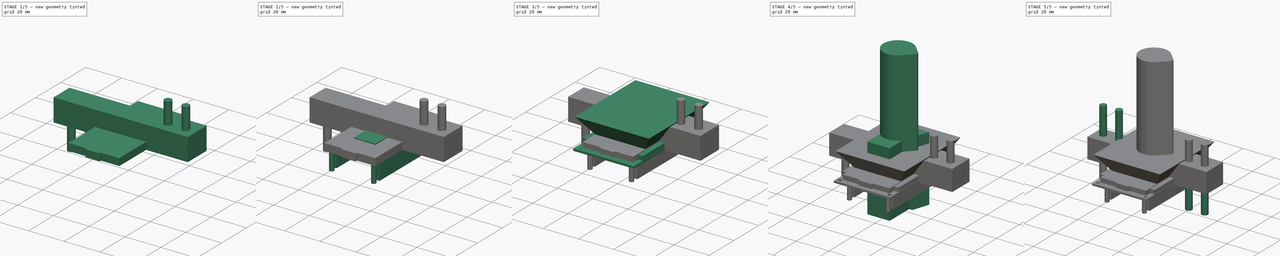
[diagram: build sequence overview — one tinted view per stage of 5, left to right]
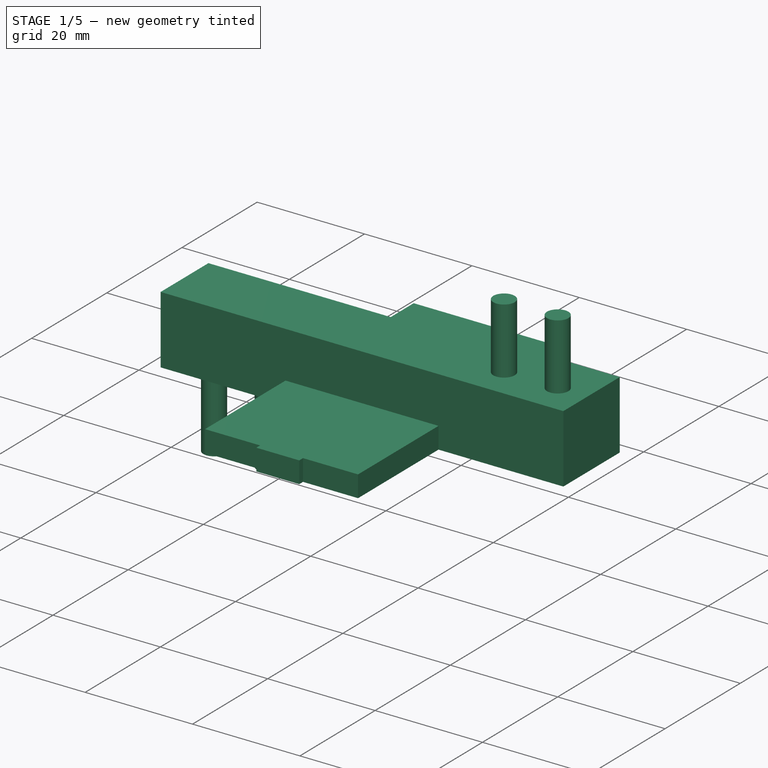
[diagram: stage 1 of 5 — iso view after this stage's code; geometry added in this stage tinted green]
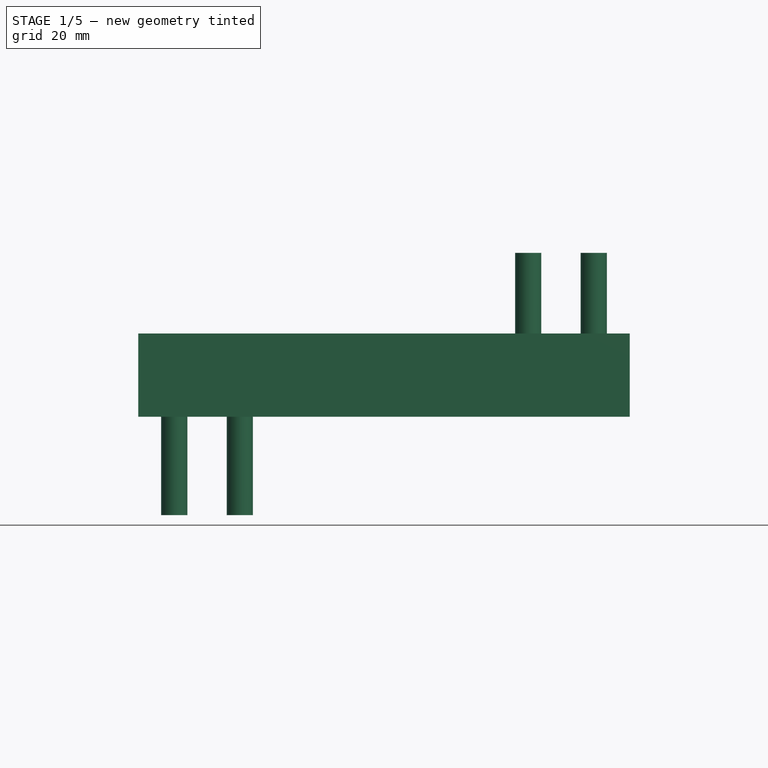
[diagram: stage 1 of 5 — front view after this stage's code; geometry added in this stage tinted green]
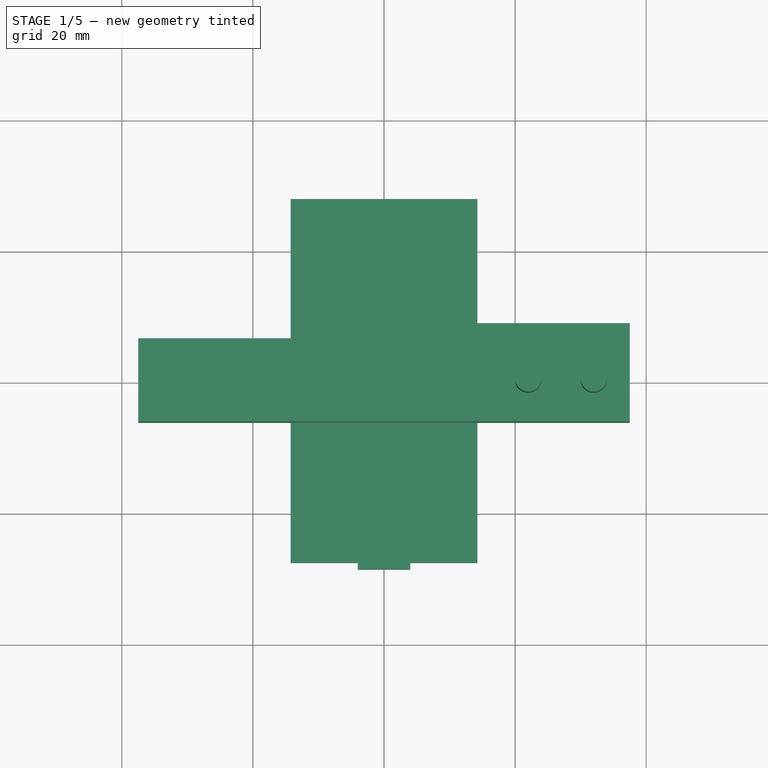
[diagram: stage 1 of 5 — top view after this stage's code; geometry added in this stage tinted green]
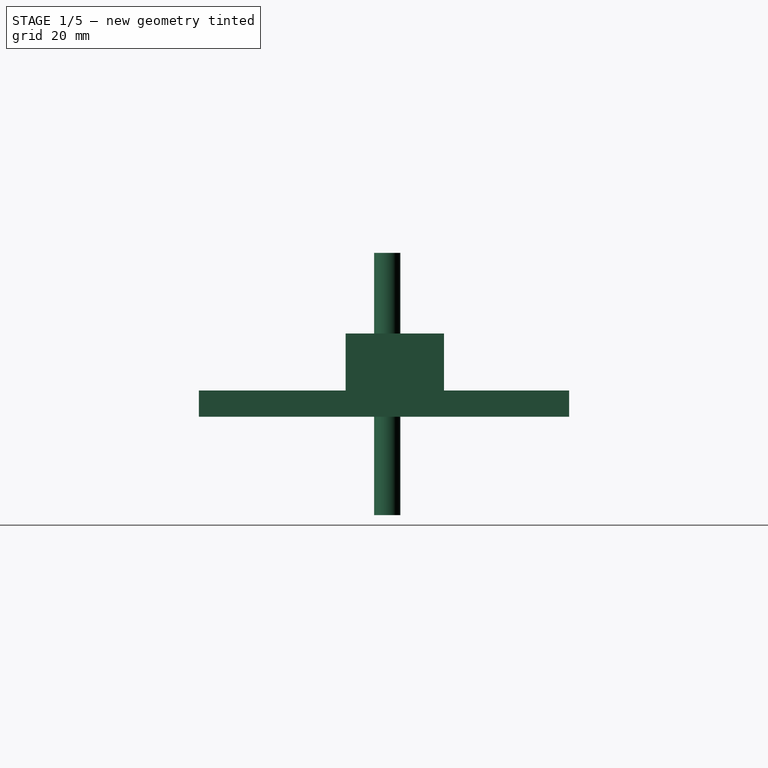
[diagram: stage 1 of 5 — right view after this stage's code; geometry added in this stage tinted green]
FCSTD DOCUMENT  (FreeCAD 0.22R38340 (Git))
Label: parts
License: All rights reserved
LicenseURL: https://en.wikipedia.org/wiki/All_rights_reserved
objects: PartDesign::Pad×20, Sketcher::SketchObject×11, Image::ImagePlane×7, PartDesign::Body×7, PartDesign::SubShapeBinder×2, PartDesign::Pocket×2
note: 97 computed .brp shape members not serialized (recipe doc carries the construction recipe); baked Part::Feature solids carry a one-line shape summary decoded from their .brp

FEATURE [PartDesign::Body] Body001  label="display"
  AllowCompound = false
  Group = -> [Sketch001,Pad003,Pad004,Binder,Pad005,Pad006,Pocket001]
  Origin = -> Origin001
  Tip = -> Pocket001
FEATURE [PartDesign::Pad] Pad019
  Direction = (0,0,1)
  Length = 4
  Length2 = 10
  Profile = -> Sketch004 [Edge7,Edge8,Edge1,Edge2,Edge3,Edge4,Edge5,Edge6]
  ReferenceAxis = -> Sketch004 [N_Axis]
  Refine = true
  Suppressed = false
  Type = 0
FEATURE [PartDesign::Body] Body003  label="esp32"
  AllowCompound = false
  Group = -> [Sketch004,Pad019,Pad020,Sketch009,Pad023]
  Origin = -> Origin003
  Tip = -> Pad023
FEATURE [Sketcher::SketchObject] Sketch010
  ArcFitTolerance = 1e-06
  AttachmentSupport = -> [XY_Plane006]
  FullyConstrained = true
  MakeInternals = false
  MapMode = 5
  sketch-geometry (13):
    g0: Circle CenterX=-32 CenterY=0 CenterZ=0 NormalX=0 NormalY=0 NormalZ=1 AngleXU=0 Radius=2
    g1: Circle CenterX=-22 CenterY=0 CenterZ=0 NormalX=0 NormalY=0 NormalZ=1 AngleXU=0 Radius=2
    g2: Circle CenterX=22 CenterY=0 CenterZ=0 NormalX=0 NormalY=0 NormalZ=1 AngleXU=0 Radius=2
    g3: Circle CenterX=32 CenterY=0 CenterZ=0 NormalX=0 NormalY=0 NormalZ=1 AngleXU=0 Radius=2
    g4: LineSegment StartX=-37.5 StartY=6.35 StartZ=0 EndX=-37.5 EndY=-6.35 EndZ=0
    g5: LineSegment StartX=-37.5 StartY=-6.35 StartZ=0 EndX=37.5 EndY=-6.35 EndZ=0
    g6: LineSegment StartX=37.5 StartY=-6.35 StartZ=0 EndX=37.5 EndY=6.35 EndZ=0
    g7: GeomPoint X=0 Y=0 Z=0
    g8: LineSegment StartX=6.5 StartY=6.35 StartZ=0 EndX=8.8 EndY=8.65 EndZ=0
    g9: LineSegment StartX=8.8 StartY=8.65 StartZ=0 EndX=37.5 EndY=8.65 EndZ=0
    g10: LineSegment StartX=37.5 StartY=8.65 StartZ=0 EndX=37.5 EndY=6.35 EndZ=0
    g11: LineSegment StartX=6.5 StartY=6.35 StartZ=0 EndX=-37.5 EndY=6.35 EndZ=0
    g12: LineSegment StartX=37.5 StartY=8.65 StartZ=0 EndX=37.5 EndY=6.35 EndZ=0
  constraints (35):
    c: PointOnObject(g0,g-1)
    c: PointOnObject(g1,g-1)
    c: PointOnObject(g3,g-1)
    c: Equal(g3,g2)
    c: Equal(g2,g1)
    c: Equal(g1,g0)
    c: Coincident(g4,g5)
    c: Coincident(g5,g6)
    c: Coincident(g11,g4)
    c: Vertical(g4)
    c: Vertical(g6)
    c: Horizontal(g5)
    c: Symmetric(g6,g4,g7)
    c: Coincident(g7,g-1)
    c: DistanceX(g11,g6) = 75
    c: DistanceY(g6,g6) = 12.7
    c: DistanceX(g0,g1) = 10
    c: DistanceX(g2,g3) = 10
    c: Diameter(g1) = 4
    c: DistanceX(g1,g2) = 44
    c: Symmetric(g1,g2,g-2)
    c: PointOnObject(g8,g11)
    c: Coincident(g8,g9)
    c: Horizontal(g9)
    c: Coincident(g10,g6)
    c: Vertical(g10)
    c: PointOnObject(g11,g8)
    c: Coincident(g9,g10)
    c: DistanceY(g5,g8) = 15
    c: Angle(g8,g9) = 2.35619
    c: DistanceX(g8,g6) = 31
    c: Horizontal(g11)
    c: Horizontal(g8,g6)
    c: Coincident(g12,g9)
    c: Coincident(g12,g6)
FEATURE [PartDesign::Pad] Pad024
  Direction = (0,0,1)
  Length = 12.7
  Length2 = 10
  Profile = -> Sketch010 [Edge7,Edge6,Edge5,Edge11,Edge10,Edge9,Edge8]
  ReferenceAxis = -> Sketch010 [N_Axis]
  Refine = true
  Suppressed = false
  Type = 0
FEATURE [PartDesign::Pad] Pad025  label="Pad_LOAD_SCREWS"
  BaseFeature = -> Pad024
  Direction = (0,0,1)
  Length = 15
  Length2 = 10
  Profile = -> Sketch010 [Edge1,Edge2]
  ReferenceAxis = -> Sketch010 [N_Axis]
  Refine = true
  Reversed = true
  Suppressed = false
  Type = 0
FEATURE [PartDesign::Pad] Pad026  label="Pad_FIXED_SCREWS"
  BaseFeature = -> Pad025
  Direction = (0,0,1)
  Length = 25
  Length2 = 10
  Profile = -> Sketch010 [Edge3,Edge4]
  ReferenceAxis = -> Sketch010 [N_Axis]
  Refine = true
  Suppressed = false
  Type = 0
FEATURE [PartDesign::Body] Body006  label="loadcell_mit_silikon"
  AllowCompound = false
  Group = -> [Sketch010,Pad024,Pad025,Pad026]
  Origin = -> Origin006
  Tip = -> Pad026
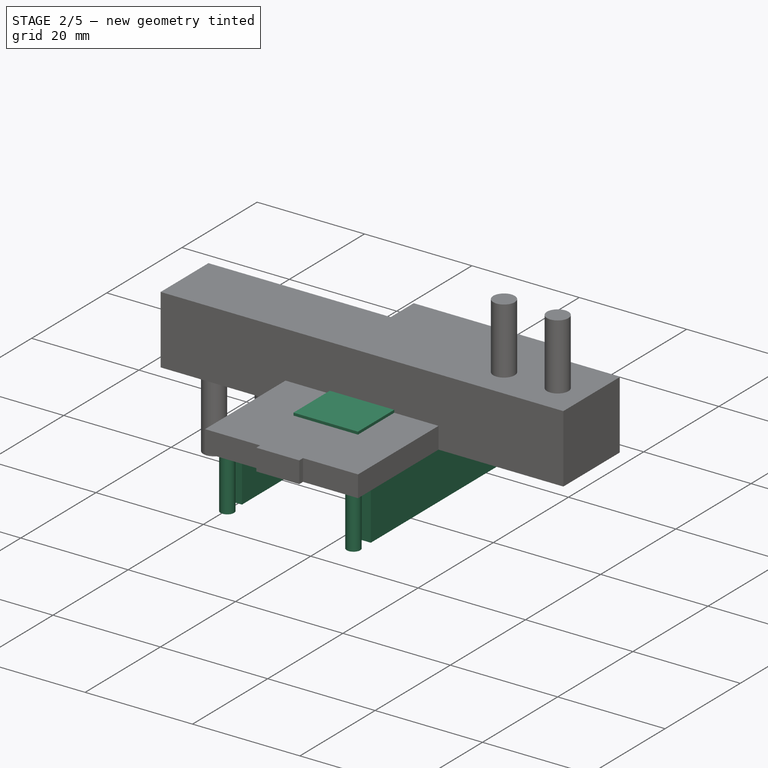
[diagram: stage 2 of 5 — iso view after this stage's code; geometry added in this stage tinted green]
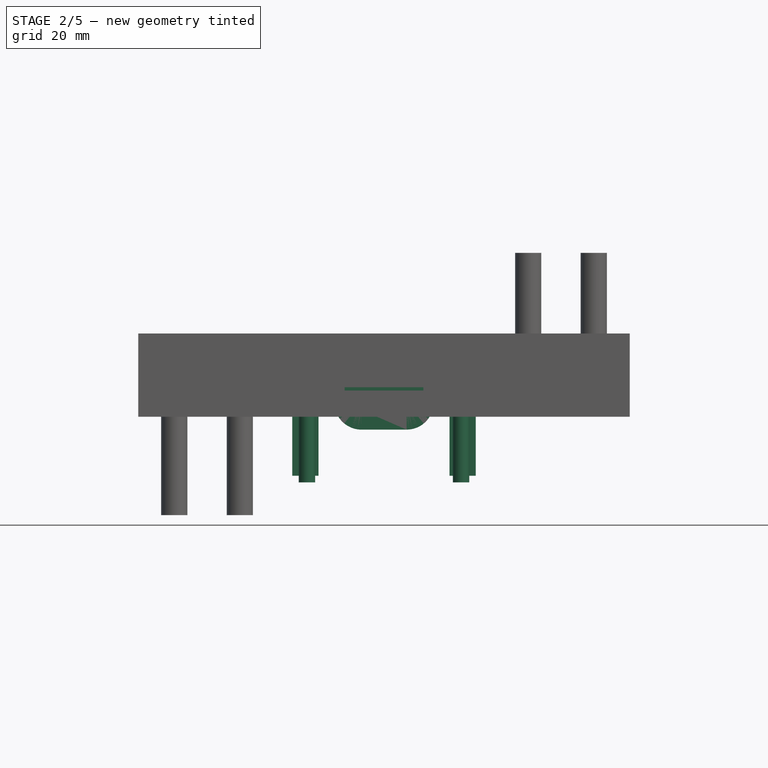
[diagram: stage 2 of 5 — front view after this stage's code; geometry added in this stage tinted green]
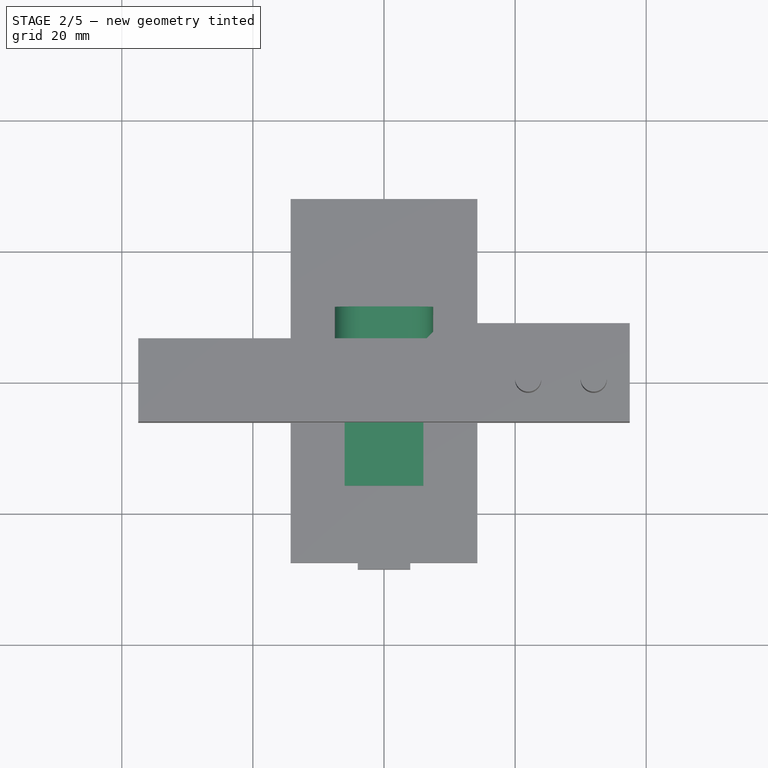
[diagram: stage 2 of 5 — top view after this stage's code; geometry added in this stage tinted green]
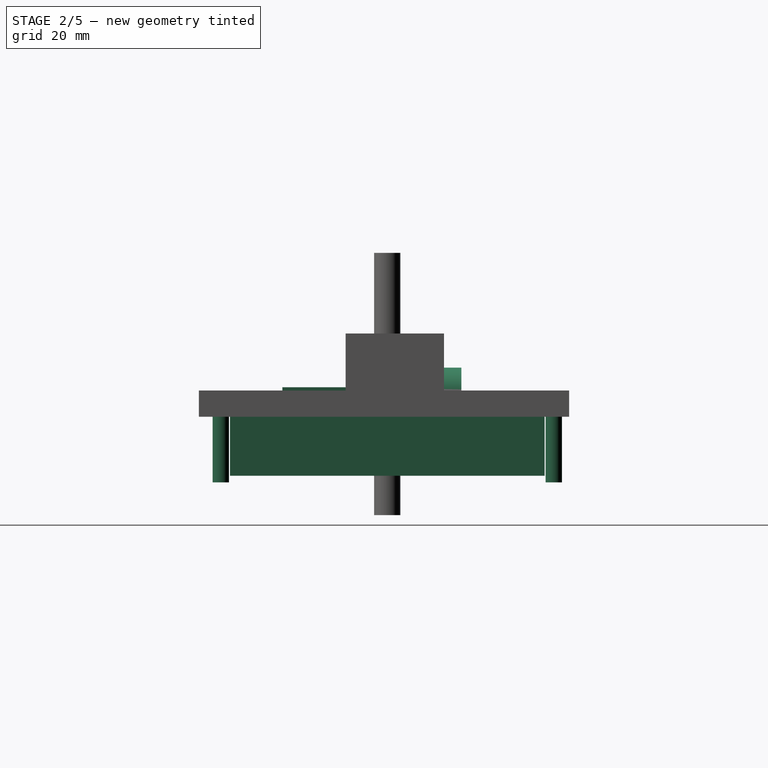
[diagram: stage 2 of 5 — right view after this stage's code; geometry added in this stage tinted green]
FEATURE [Image::ImagePlane] charger  label="charger_img"
  XSize = 201.411
  YSize = 256.437
FEATURE [Sketcher::SketchObject] Sketch002
  ArcFitTolerance = 1e-06
  AttachmentSupport = -> [XY_Plane002]
  FullyConstrained = true
  MakeInternals = false
  MapMode = 5
  sketch-geometry (10):
    g0: LineSegment StartX=-6 StartY=0 StartZ=0 EndX=-6 EndY=-1.6 EndZ=0
    g1: LineSegment StartX=-6 StartY=-16 StartZ=0 EndX=6 EndY=-16 EndZ=0
    g2: LineSegment StartX=6 StartY=-16 StartZ=0 EndX=6 EndY=-3.2 EndZ=0
    g3: LineSegment StartX=6 StartY=0 StartZ=0 EndX=-6 EndY=0 EndZ=0
    g4: GeomPoint X=-6 Y=-2.4 Z=0
    g5: GeomPoint X=6 Y=-2.4 Z=0
    g6: ArcOfCircle CenterX=-6 CenterY=-2.4 CenterZ=0 NormalX=0 NormalY=0 NormalZ=1 AngleXU=0 Radius=0.8 StartAngle=4.71239 EndAngle=7.85398
    g7: ArcOfCircle CenterX=6 CenterY=-2.4 CenterZ=0 NormalX=0 NormalY=0 NormalZ=1 AngleXU=0 Radius=0.8 StartAngle=1.5708 EndAngle=4.71239
    g8: LineSegment StartX=6 StartY=-1.6 StartZ=0 EndX=6 EndY=0 EndZ=0
    g9: LineSegment StartX=-6 StartY=-3.2 StartZ=0 EndX=-6 EndY=-16 EndZ=0
  constraints (29):
    c: Coincident(g9,g1)
    c: Coincident(g1,g2)
    c: Coincident(g8,g3)
    c: Coincident(g3,g0)
    c: Vertical(g0)
    c: Vertical(g2)
    c: Horizontal(g1)
    c: Horizontal(g3)
    c: Distance(g0,g8) = 12
    c: Distance(g1,g3) = 16
    c: Symmetric(g0,g8,g-1)
    c: PointOnObject(g4,g0)
    c: PointOnObject(g5,g2)
    c: Horizontal(g5,g4)
    c: DistanceY(g4,g0) = 2.4
    c: Coincident(g6,g4)
    c: PointOnObject(g6,g9)
    c: Coincident(g7,g5)
    c: PointOnObject(g7,g8)
    c: Equal(g6,g7)
    c: Radius(g6) = 0.8
    c: Coincident(g2,g7)
    c: PointOnObject(g8,g7)
    c: Coincident(g0,g6)
    c: PointOnObject(g9,g6)
    c: Vertical(g0,g6)
    c: Vertical(g7,g2)
    c: Vertical(g9)
    c: Vertical(g8)
FEATURE [Sketcher::SketchObject] Sketch003
  ArcFitTolerance = 1e-06
  AttachmentOffset = pos=(0,0,-1.3) rot=(0,0,1;0rad)
  AttachmentSupport = -> [XZ_Plane002]
  FullyConstrained = true
  MakeInternals = false
  MapMode = 5
  Placement = pos=(0,1.3,-3e-16) rot=(1,0,0;1.5708rad)
  expr: Constraints[22] = 6.69 mm + 0.2 mm
  expr: Constraints[23] = 4.4 mm + 0.1 mm
  expr: Constraints[7] = 8.94 mm + 0.2 mm
  expr: Constraints[8] = 3.26 mm + 0.2 mm
  sketch-geometry (10):
    g0: LineSegment StartX=-3.445 StartY=1.04 StartZ=0 EndX=3.445 EndY=1.04 EndZ=0
    g1: LineSegment StartX=4.57 StartY=2.165 StartZ=0 EndX=4.57 EndY=3.375 EndZ=0
    g2: LineSegment StartX=3.445 StartY=4.5 StartZ=0 EndX=-3.445 EndY=4.5 EndZ=0
    g3: LineSegment StartX=-4.57 StartY=3.375 StartZ=0 EndX=-4.57 EndY=2.165 EndZ=0
    g4: GeomPoint X=4.57 Y=4.5 Z=0
    g5: GeomPoint X=0 Y=2.77 Z=0
    g6: ArcOfCircle CenterX=3.445 CenterY=3.375 CenterZ=0 NormalX=0 NormalY=0 NormalZ=1 AngleXU=0 Radius=1.125 StartAngle=0 EndAngle=1.5708
    g7: ArcOfCircle CenterX=3.445 CenterY=2.165 CenterZ=0 NormalX=0 NormalY=0 NormalZ=1 AngleXU=0 Radius=1.125 StartAngle=4.71239 EndAngle=6.28319
    g8: ArcOfCircle CenterX=-3.445 CenterY=2.165 CenterZ=0 NormalX=0 NormalY=0 NormalZ=1 AngleXU=0 Radius=1.125 StartAngle=3.14159 EndAngle=4.71239
    g9: ArcOfCircle CenterX=-3.445 CenterY=3.375 CenterZ=0 NormalX=0 NormalY=0 NormalZ=1 AngleXU=0 Radius=1.125 StartAngle=1.5708 EndAngle=3.14159
  constraints (24):
    c: Horizontal(g0)
    c: Horizontal(g2)
    c: Vertical(g1)
    c: Vertical(g3)
    c: Symmetric(g2,g0,g5)
    c: PointOnObject(g4,g1)
    c: PointOnObject(g4,g2)
    c: Distance(g1,g3) = 9.14
    c: Distance(g0,g2) = 3.46
    c: PointOnObject(g5,g-2)
    c: Equal(g3,g1)
    c: Equal(g0,g2)
    c: Vertical(g0,g2)
    c: DistanceY(g1,g1) = 1.21
    c: Tangent(g6,g2) = -1.5708
    c: Tangent(g6,g1) = -1.5708
    c: Tangent(g7,g1) = -1.5708
    c: Tangent(g7,g0) = -1.5708
    c: Tangent(g8,g0) = -1.5708
    c: Tangent(g8,g3) = -1.5708
    c: Tangent(g9,g3) = -1.5708
    c: Tangent(g9,g2) = -1.5708
    c: DistanceX(g2,g2) = 6.89
    c: DistanceY(g2) = 4.5
FEATURE [PartDesign::Pad] Pad007
  Direction = (0,-1,2e-16)
  Length = 10
  Length2 = 10
  Placement = pos=(0,0,0) rot=(1,0,0;1.5708rad)
  Profile = -> Sketch003
  ReferenceAxis = -> Sketch003 [N_Axis]
  Refine = true
  Suppressed = false
  Type = 0
FEATURE [PartDesign::SubShapeBinder] Binder001
  BindCopyOnChange = 0
  BindMode = 0
  ClaimChildren = false
  Context = -> Body002 [Binder001.]
  Fuse = false
  MakeFace = true
  Offset = 3
  OffsetFill = false
  OffsetIntersection = false
  OffsetJoinType = 0
  OffsetOpenResult = false
  PartialLoad = false
  Refine = true
  Relative = true
  Support = -> [Sketch003]
  _Version = 2
FEATURE [PartDesign::Pad] Pad008
  BaseFeature = -> Pad007
  Direction = (0,-1,2e-16)
  Length = 10
  Length2 = 10
  Placement = pos=(0,0,0) rot=(1,0,0;1.5708rad)
  Profile = -> Binder001
  Refine = true
  Reversed = true
  Suppressed = false
  Type = 0
FEATURE [PartDesign::Pad] Pad020
  BaseFeature = -> Pad019
  Direction = (0,0,1)
  Length = 10
  Length2 = 10
  Profile = -> Sketch004 [Edge11,Edge12,Edge9,Edge10]
  ReferenceAxis = -> Sketch004 [N_Axis]
  Refine = true
  Reversed = true
  Suppressed = false
  Type = 0
FEATURE [PartDesign::Pad] Pad021
  BaseFeature = -> Pad008
  Direction = (0,0,1)
  Length = 4.5
  Length2 = 10
  Placement = pos=(0,0,0) rot=(1,0,0;1.5708rad)
  Profile = -> Sketch002
  ReferenceAxis = -> Sketch002 [N_Axis]
  Refine = true
  Suppressed = false
  Type = 0
FEATURE [PartDesign::Body] Body002  label="charger"
  AllowCompound = false
  Group = -> [Sketch002,Sketch003,Pad007,Binder001,Pad008,Pad021,Sketch008,Pad022]
  Origin = -> Origin002
  Tip = -> Pad022
FEATURE [Sketcher::SketchObject] Sketch009
  ArcFitTolerance = 1e-06
  AttachmentSupport = -> [Pad020]
  FullyConstrained = true
  MakeInternals = false
  MapMode = 5
  Placement = pos=(0,0,0) rot=(1,0,0;3.14159rad)
  sketch-geometry (8):
    g0: LineSegment StartX=-14 StartY=24 StartZ=0 EndX=-14 EndY=-24 EndZ=0
    g1: LineSegment StartX=-14 StartY=-24 StartZ=0 EndX=-10 EndY=-24 EndZ=0
    g2: LineSegment StartX=-10 StartY=-24 StartZ=0 EndX=-10 EndY=24 EndZ=0
    g3: LineSegment StartX=-10 StartY=24 StartZ=0 EndX=-14 EndY=24 EndZ=0
    g4: LineSegment StartX=10 StartY=-24 StartZ=0 EndX=14 EndY=-24 EndZ=0
    g5: LineSegment StartX=14 StartY=-24 StartZ=0 EndX=14 EndY=24 EndZ=0
    g6: LineSegment StartX=14 StartY=24 StartZ=0 EndX=10 EndY=24 EndZ=0
    g7: LineSegment StartX=10 StartY=24 StartZ=0 EndX=10 EndY=-24 EndZ=0
  constraints (23):
    c: Coincident(g0,g1)
    c: Coincident(g1,g2)
    c: Coincident(g2,g3)
    c: Coincident(g3,g0)
    c: Vertical(g0)
    c: Vertical(g2)
    c: Horizontal(g1)
    c: Horizontal(g3)
    c: Coincident(g4,g5)
    c: Coincident(g5,g6)
    c: Coincident(g6,g7)
    c: Coincident(g7,g4)
    c: Horizontal(g4)
    c: Horizontal(g6)
    c: Vertical(g5)
    c: Vertical(g7)
    c: Equal(g2,g7)
    c: Equal(g3,g6)
    c: Symmetric(g0,g5,g-1)
    c: DistanceX(g0,g5) = 28
    c: Distance(g3,g3) = 4
    c: DistanceY(g5,g5) = 48
    c: Horizontal(g2,g6)
FEATURE [PartDesign::Pad] Pad023
  BaseFeature = -> Pad020
  Direction = (0,0,-1)
  Length = 9
  Length2 = 10
  Profile = -> Sketch009
  ReferenceAxis = -> Sketch009 [N_Axis]
  Refine = true
  Suppressed = false
  Type = 0
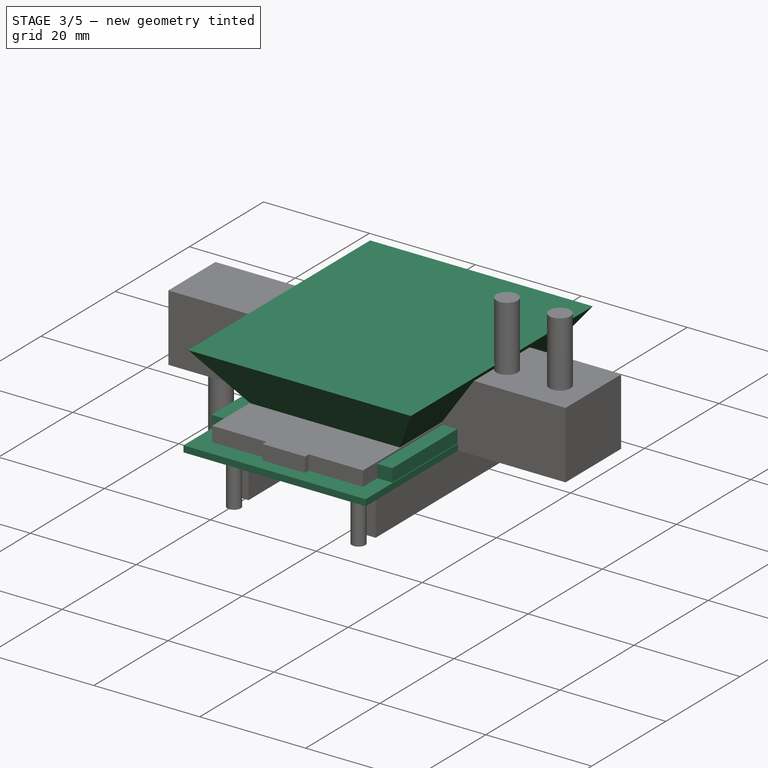
[diagram: stage 3 of 5 — iso view after this stage's code; geometry added in this stage tinted green]
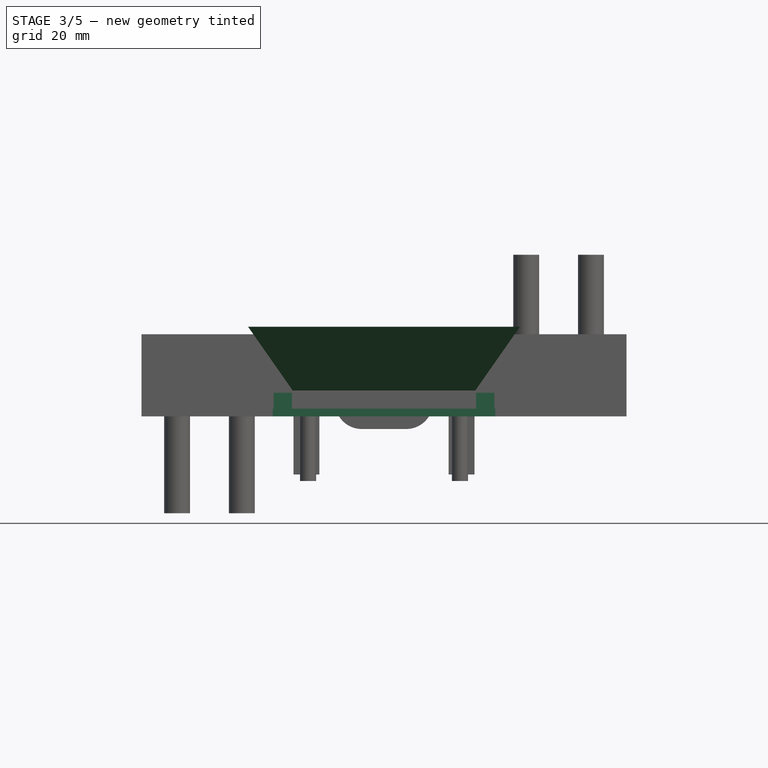
[diagram: stage 3 of 5 — front view after this stage's code; geometry added in this stage tinted green]
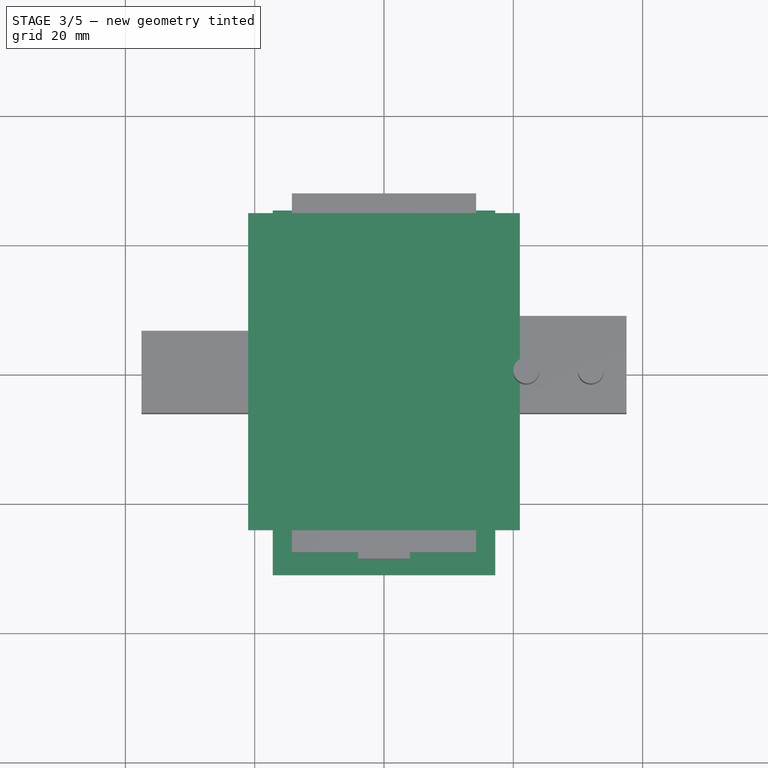
[diagram: stage 3 of 5 — top view after this stage's code; geometry added in this stage tinted green]
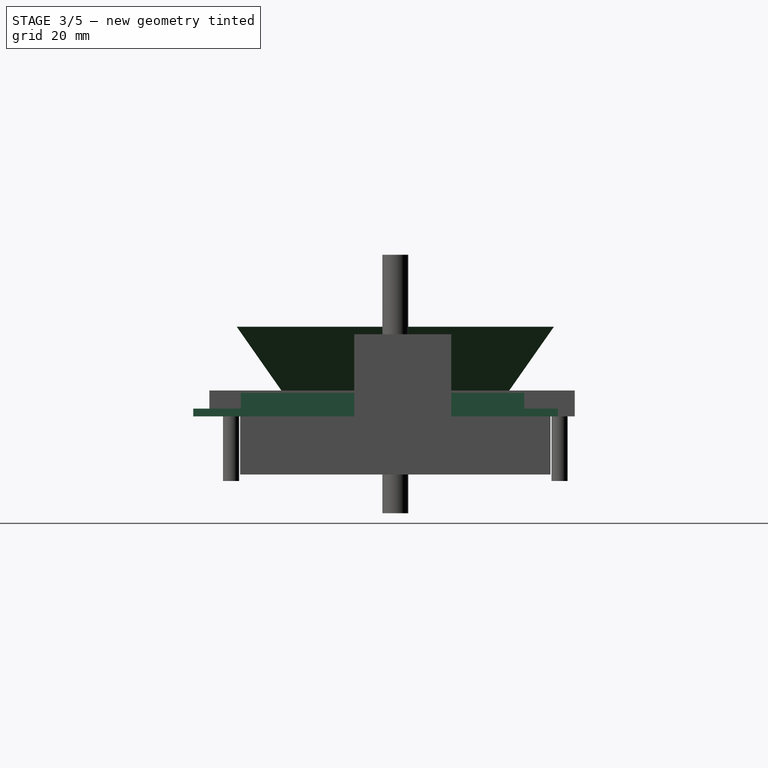
[diagram: stage 3 of 5 — right view after this stage's code; geometry added in this stage tinted green]
FEATURE [PartDesign::Body] Body  label="loadcell"
  AllowCompound = false
  Group = -> [Sketch,Pad,Pad001,Pad002]
  Origin = -> Origin
  Tip = -> Pad002
FEATURE [Sketcher::SketchObject] Sketch001
  ArcFitTolerance = 1e-06
  AttachmentSupport = -> [XY_Plane001]
  FullyConstrained = true
  MakeInternals = false
  MapMode = 5
  sketch-geometry (23):
    g0: LineSegment StartX=-17.2 StartY=25.15 StartZ=0 EndX=-17.2 EndY=-31.25 EndZ=0
    g1: LineSegment StartX=-17.2 StartY=-31.25 StartZ=0 EndX=17.2 EndY=-31.25 EndZ=0
    g2: LineSegment StartX=17.2 StartY=-31.25 StartZ=0 EndX=17.2 EndY=25.15 EndZ=0
    g3: LineSegment StartX=17.2 StartY=25.15 StartZ=0 EndX=-17.2 EndY=25.15 EndZ=0
    g4: GeomPoint X=0 Y=0 Z=0
    g5: Circle CenterX=-15 CenterY=22.95 CenterZ=0 NormalX=0 NormalY=0 NormalZ=1 AngleXU=0 Radius=1
    g6: Circle CenterX=15 CenterY=22.95 CenterZ=0 NormalX=0 NormalY=0 NormalZ=1 AngleXU=0 Radius=1
    g7: Circle CenterX=15 CenterY=-29.05 CenterZ=0 NormalX=0 NormalY=0 NormalZ=1 AngleXU=0 Radius=1
    g8: Circle CenterX=-15 CenterY=-29.05 CenterZ=0 NormalX=0 NormalY=0 NormalZ=1 AngleXU=0 Radius=1
    g9: LineSegment StartX=-14.015 StartY=17.52 StartZ=0 EndX=-14.015 EndY=-17.52 EndZ=0
    g10: LineSegment StartX=-14.015 StartY=-17.52 StartZ=0 EndX=14.015 EndY=-17.52 EndZ=0
    g11: LineSegment StartX=14.015 StartY=-17.52 StartZ=0 EndX=14.015 EndY=17.52 EndZ=0
    g12: LineSegment StartX=14.015 StartY=17.52 StartZ=0 EndX=-14.015 EndY=17.52 EndZ=0
    g13: GeomPoint X=0 Y=0 Z=0
    g14: LineSegment StartX=-17.075 StartY=19.95 StartZ=0 EndX=-17.075 EndY=-23.9 EndZ=0
    g15: LineSegment StartX=-17.075 StartY=-23.9 StartZ=0 EndX=17.075 EndY=-23.9 EndZ=0
    g16: LineSegment StartX=17.075 StartY=-23.9 StartZ=0 EndX=17.075 EndY=19.95 EndZ=0
    g17: LineSegment StartX=17.075 StartY=19.95 StartZ=0 EndX=-17.075 EndY=19.95 EndZ=0
    g18: GeomPoint X=0 Y=-1.975 Z=0
    g19: LineSegment StartX=-11.7 StartY=25.149 StartZ=0 EndX=-11.7 EndY=20.95 EndZ=0
    g20: LineSegment StartX=-11.7 StartY=20.95 StartZ=0 EndX=11.7 EndY=20.95 EndZ=0
    g21: LineSegment StartX=11.7 StartY=20.95 StartZ=0 EndX=11.7 EndY=25.149 EndZ=0
    g22: LineSegment StartX=11.7 StartY=25.149 StartZ=0 EndX=-11.7 EndY=25.149 EndZ=0
  constraints (60):
    c: Coincident(g0,g1)
    c: Coincident(g1,g2)
    c: Coincident(g2,g3)
    c: Coincident(g3,g0)
    c: Vertical(g0)
    c: Vertical(g2)
    c: Horizontal(g3)
    c: Coincident(g4,g-1)
    c: DistanceY(g0,g0) = 56.4
    c: Symmetric(g1,g0,g-2)
    c: Equal(g6,g5)
    c: Equal(g5,g7)
    c: Equal(g7,g8)
    c: Diameter(g6) = 2
    c: Horizontal(g5,g6)
    c: Vertical(g6,g7)
    c: Vertical(g8,g5)
    c: DistanceX(g8,g7) = 30
    c: Coincident(g9,g10)
    c: Coincident(g10,g11)
    c: Coincident(g11,g12)
    c: Coincident(g12,g9)
    c: Vertical(g9)
    c: Vertical(g11)
    c: Horizontal(g10)
    c: Horizontal(g12)
    c: Symmetric(g11,g9,g13)
    c: Coincident(g13,g4)
    c: DistanceY(g9,g9) = 35.04
    c: DistanceX(g10,g10) = 28.03
    c: Coincident(g14,g15)
    c: Coincident(g15,g16)
    c: Coincident(g16,g17)
    c: Coincident(g17,g14)
    c: Vertical(g14)
    c: Vertical(g16)
    c: Horizontal(g15)
    c: Horizontal(g17)
    c: Symmetric(g16,g14,g18)
    c: PointOnObject(g18,g-2)
    c: DistanceY(g14,g14) = 43.85
    c: DistanceY(g8,g5) = 52
    c: Symmetric(g8,g7,g-2)
    c: DistanceY(g5,g0) = 2.2
    c: DistanceY(g14,g0) = 5.2
    c: Coincident(g19,g20)
    c: Coincident(g20,g21)
    c: Coincident(g21,g22)
    c: Coincident(g22,g19)
    c: Vertical(g19)
    c: Vertical(g21)
    c: Horizontal(g20)
    c: Symmetric(g21,g19,g-2)
    c: DistanceX(g21,g2) = 5.5
    c: DistanceY(g19,g0) = 0.001
    c: DistanceY(g20,g16) = -1
    c: DistanceY(g9,g14) = 2.43
    c: DistanceX(g17,g17) = 34.15
    c: DistanceX(g3,g3) = 34.4
    c: DistanceY(g1,g15) = 7.35
FEATURE [Image::ImagePlane] lcd_front
  Placement = pos=(-11.6,7.22,10) rot=(0,0,1;0rad)
  XSize = 60.46
  YSize = 79.2117
FEATURE [Image::ImagePlane] lcd_side
  Placement = pos=(0,3.4,-17.75) rot=(0,1,0;1.5708rad)
  XSize = 52.9027
  YSize = 78.7888
FEATURE [PartDesign::Pad] Pad003
  Direction = (0,0,1)
  Length = 1.2
  Length2 = 10
  Profile = -> Sketch001 [Edge3,Edge2,Edge1,Edge4]
  ReferenceAxis = -> Sketch001 [N_Axis]
  Refine = true
  Suppressed = false
  Type = 0
FEATURE [PartDesign::Pad] Pad004
  BaseFeature = -> Pad003
  Direction = (0,0,1)
  Length = 3.65
  Length2 = 10
  Profile = -> Sketch001 [Edge15,Edge14,Edge13,Edge16]
  ReferenceAxis = -> Sketch001 [N_Axis]
  Refine = true
  Suppressed = false
  Type = 0
FEATURE [PartDesign::SubShapeBinder] Binder
  BindCopyOnChange = 0
  BindMode = 0
  ClaimChildren = false
  Context = -> Body001 [Binder.]
  Fuse = false
  MakeFace = true
  OffsetFill = false
  OffsetIntersection = false
  OffsetJoinType = 0
  OffsetOpenResult = false
  PartialLoad = false
  Placement = pos=(0,0,3.85) rot=(0,0,1;0rad)
  Refine = true
  Relative = true
  Support = -> [Sketch001[Edge10,Edge9,Edge12,Edge11]]
  _Version = 2
  expr: .Placement.Base.z = Pad004.Length + 0.2 mm
FEATURE [PartDesign::Pad] Pad005
  BaseFeature = -> Pad004
  Direction = (0,0,1)
  Length = 10
  Length2 = 1
  Profile = -> Binder
  Refine = true
  Suppressed = false
  TaperAngle = 35
  Type = 4
FEATURE [Sketcher::SketchObject] Sketch008
  ArcFitTolerance = 1e-06
  AttachmentOffset = pos=(0,0,2) rot=(0,0,1;0rad)
  AttachmentSupport = -> [XY_Plane002]
  FullyConstrained = true
  MakeInternals = false
  MapMode = 5
  Placement = pos=(0,0,2) rot=(0,0,1;0rad)
  sketch-geometry (4):
    g0: LineSegment StartX=-7 StartY=0 StartZ=0 EndX=-7 EndY=-16 EndZ=0
    g1: LineSegment StartX=-7 StartY=-16 StartZ=0 EndX=7 EndY=-16 EndZ=0
    g2: LineSegment StartX=7 StartY=-16 StartZ=0 EndX=7 EndY=0 EndZ=0
    g3: LineSegment StartX=7 StartY=0 StartZ=0 EndX=-7 EndY=0 EndZ=0
  constraints (11):
    c: Coincident(g0,g1)
    c: Coincident(g1,g2)
    c: Coincident(g2,g3)
    c: Coincident(g3,g0)
    c: Vertical(g0)
    c: Vertical(g2)
    c: Horizontal(g3)
    c: PointOnObject(g0,g-1)
    c: Symmetric(g1,g0,g-2)
    c: DistanceY(g1) = -16
    c: DistanceX(g1,g1) = 14
FEATURE [PartDesign::Pad] Pad022
  BaseFeature = -> Pad021
  Direction = (0,0,1)
  Length = 3
  Length2 = 10
  Placement = pos=(0,0,0) rot=(1,0,0;1.5708rad)
  Profile = -> Sketch008
  ReferenceAxis = -> Sketch008 [N_Axis]
  Refine = true
  Suppressed = false
  Type = 0
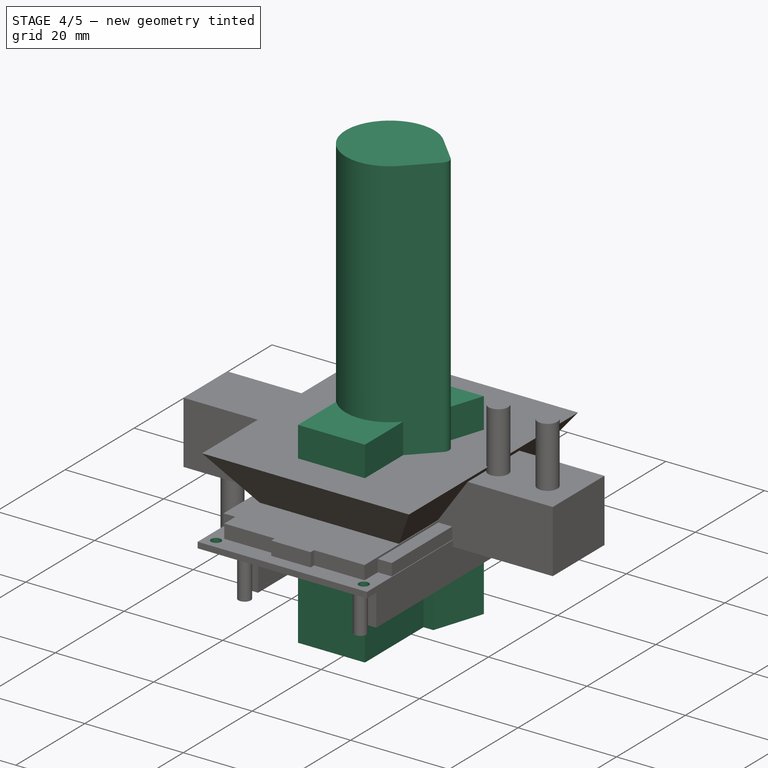
[diagram: stage 4 of 5 — iso view after this stage's code; geometry added in this stage tinted green]
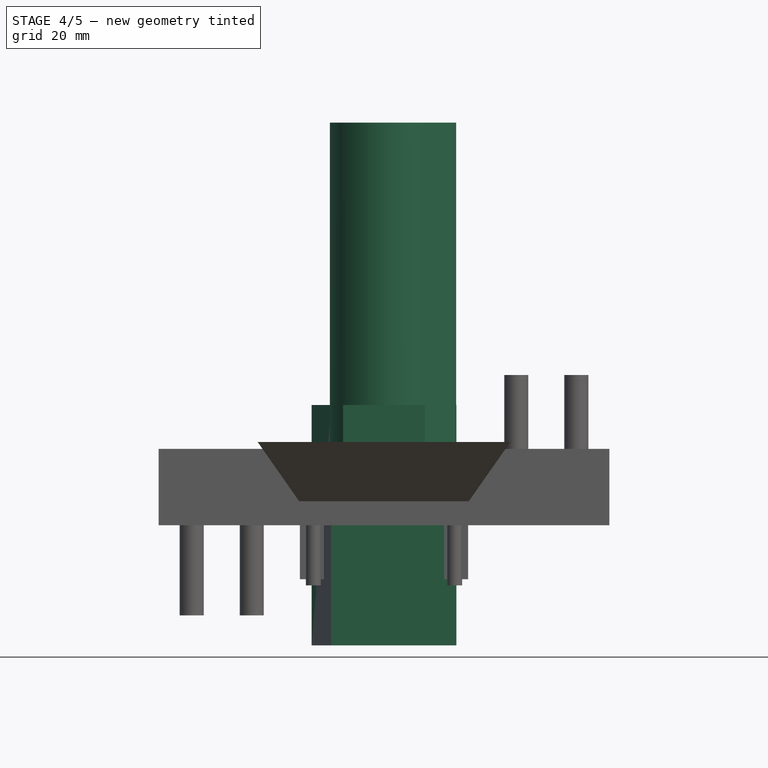
[diagram: stage 4 of 5 — front view after this stage's code; geometry added in this stage tinted green]
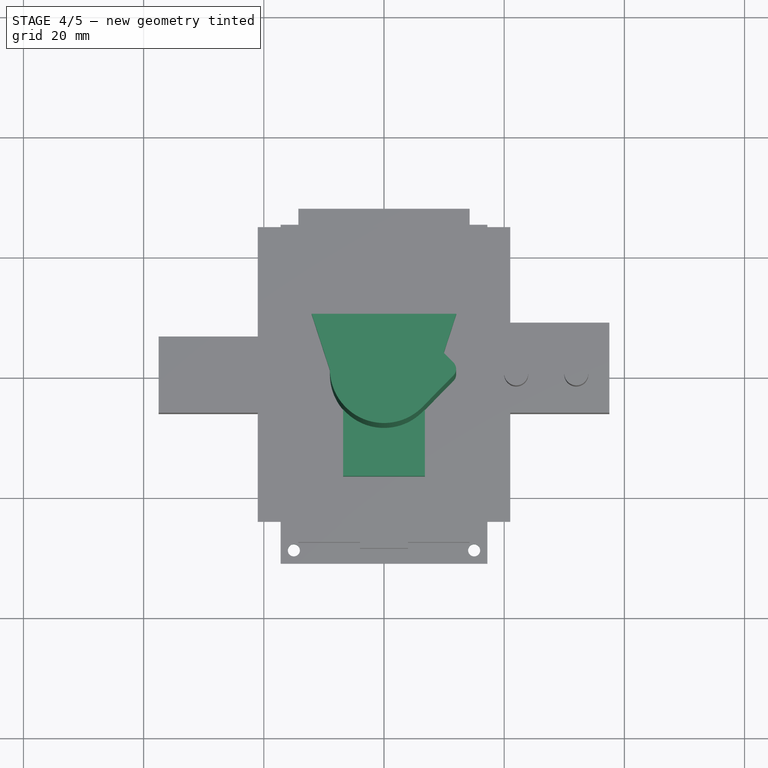
[diagram: stage 4 of 5 — top view after this stage's code; geometry added in this stage tinted green]
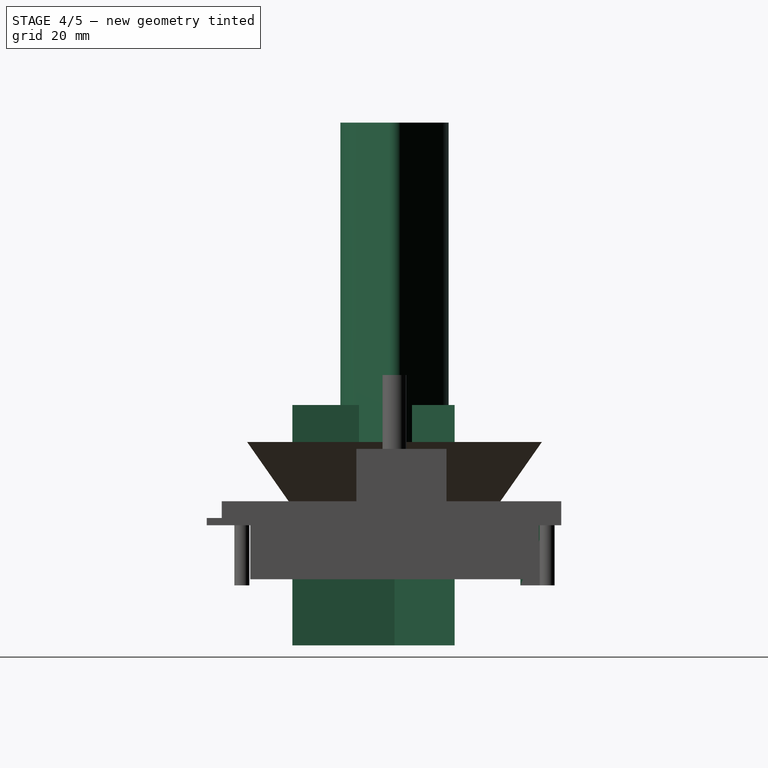
[diagram: stage 4 of 5 — right view after this stage's code; geometry added in this stage tinted green]
FEATURE [PartDesign::Pad] Pad006
  BaseFeature = -> Pad005
  Direction = (0,0,1)
  Length = 3.5
  Length2 = 10
  Profile = -> Sketch001 [Edge18,Edge17,Edge20,Edge19]
  ReferenceAxis = -> Sketch001 [N_Axis]
  Refine = true
  Suppressed = false
  TaperAngle = -10
  Type = 4
FEATURE [Image::ImagePlane] esp32microusb
  Placement = pos=(0.2,-0.6,0) rot=(0,0,1;0rad)
  XSize = 87.7649
  YSize = 56.3557
FEATURE [Sketcher::SketchObject] Sketch004
  ArcFitTolerance = 1e-06
  AttachmentSupport = -> [XY_Plane003]
  FullyConstrained = true
  MakeInternals = false
  MapMode = 5
  sketch-geometry (14):
    g0: LineSegment StartX=-14.25 StartY=27.75 StartZ=0 EndX=-14.25 EndY=-27.75 EndZ=0
    g1: LineSegment StartX=-14.25 StartY=-27.75 StartZ=0 EndX=-4 EndY=-27.75 EndZ=0
    g2: LineSegment StartX=14.25 StartY=-27.75 StartZ=0 EndX=14.25 EndY=27.75 EndZ=0
    g3: LineSegment StartX=14.25 StartY=27.75 StartZ=0 EndX=-14.25 EndY=27.75 EndZ=0
    g4: GeomPoint X=0 Y=0 Z=0
    g5: Circle CenterX=-11.75 CenterY=25.4 CenterZ=0 NormalX=0 NormalY=0 NormalZ=1 AngleXU=0 Radius=1.25
    g6: Circle CenterX=11.75 CenterY=25.4 CenterZ=0 NormalX=0 NormalY=0 NormalZ=1 AngleXU=0 Radius=1.25
    g7: Circle CenterX=11.75 CenterY=-25.4 CenterZ=0 NormalX=0 NormalY=0 NormalZ=1 AngleXU=0 Radius=1.25
    g8: Circle CenterX=-11.75 CenterY=-25.4 CenterZ=0 NormalX=0 NormalY=0 NormalZ=1 AngleXU=0 Radius=1.25
    g9: LineSegment StartX=-4 StartY=-28.75 StartZ=0 EndX=4 EndY=-28.75 EndZ=0
    g10: LineSegment StartX=4 StartY=-28.75 StartZ=0 EndX=4 EndY=-27.75 EndZ=0
    g11: LineSegment StartX=-4 StartY=-27.75 StartZ=0 EndX=-4 EndY=-28.75 EndZ=0
    g12: GeomPoint X=0 Y=-28.25 Z=0
    g13: LineSegment StartX=4 StartY=-27.75 StartZ=0 EndX=14.25 EndY=-27.75 EndZ=0
  constraints (37):
    c: Coincident(g0,g1)
    c: Coincident(g13,g2)
    c: Coincident(g2,g3)
    c: Coincident(g3,g0)
    c: Vertical(g0)
    c: Vertical(g2)
    c: Horizontal(g1)
    c: Horizontal(g3)
    c: Symmetric(g2,g0,g4)
    c: Coincident(g4,g-1)
    c: DistanceY(g0,g0) = 55.5
    c: DistanceX(g3,g3) = 28.5
    c: Diameter(g8) = 2.5
    c: Equal(g8,g7)
    c: Equal(g7,g6)
    c: Equal(g6,g5)
    c: Horizontal(g5,g6)
    c: Vertical(g6,g7)
    c: Symmetric(g6,g8,g4)
    c: Vertical(g8,g5)
    c: Horizontal(g7,g8)
    c: DistanceX(g5,g6) = 23.5
    c: DistanceY(g8,g5) = 50.8
    c: Coincident(g9,g10)
    c: Coincident(g11,g9)
    c: Horizontal(g9)
    c: Vertical(g10)
    c: Vertical(g11)
    c: Symmetric(g10,g9,g12)
    c: PointOnObject(g12,g-2)
    c: PointOnObject(g10,g13)
    c: DistanceY(g11,g11) = 1
    c: DistanceX(g9,g9) = 8
    c: PointOnObject(g13,g10)
    c: Coincident(g11,g1)
    c: Horizontal(g13)
    c: Horizontal(g10,g1)
FEATURE [Sketcher::SketchObject] Sketch005
  ArcFitTolerance = 1e-06
  AttachmentSupport = -> [XY_Plane004]
  FullyConstrained = true
  MakeInternals = false
  MapMode = 5
  sketch-geometry (6):
    g0: Circle CenterX=0 CenterY=0 CenterZ=0 NormalX=0 NormalY=0 NormalZ=1 AngleXU=0 Radius=9
    g1: Circle CenterX=10.5 CenterY=0 CenterZ=0 NormalX=0 NormalY=0 NormalZ=1 AngleXU=0 Radius=1.5
    g2: ArcOfCircle CenterX=0 CenterY=0 CenterZ=0 NormalX=0 NormalY=0 NormalZ=1 AngleXU=0 Radius=9 StartAngle=0.775193 EndAngle=5.50799
    g3: LineSegment StartX=6.42857 StartY=6.29869 StartZ=0 EndX=11.5714 EndY=1.04978 EndZ=0
    g4: ArcOfCircle CenterX=10.5 CenterY=4e-16 CenterZ=0 NormalX=0 NormalY=0 NormalZ=1 AngleXU=0 Radius=1.5 StartAngle=5.50799 EndAngle=7.05838
    g5: LineSegment StartX=11.5714 StartY=-1.04978 StartZ=0 EndX=6.42859 EndY=-6.29867 EndZ=0
  constraints (15):
    c: Diameter(g0) = 18
    c: Coincident(g0,g-1)
    c: PointOnObject(g1,g-1)
    c: Tangent(g1,g0)
    c: Diameter(g1) = 3
    c: Coincident(g2,g0)
    c: PointOnObject(g2,g0)
    c: PointOnObject(g3,g1)
    c: Tangent(g3,g4) = 1.5708
    c: PointOnObject(g4,g1)
    c: Coincident(g5,g2)
    c: Tangent(g5,g0)
    c: Tangent(g4,g5) = 1.5708
    c: Equal(g4,g1)
    c: Tangent(g2,g3) = 1.5708
FEATURE [Sketcher::SketchObject] Sketch006
  ArcFitTolerance = 1e-06
  AttachmentSupport = -> [XY_Plane005]
  FullyConstrained = true
  MakeInternals = false
  MapMode = 5
  sketch-geometry (8):
    g0: LineSegment StartX=-8.8 StartY=0 StartZ=0 EndX=-12.0492 EndY=10 EndZ=0
    g1: LineSegment StartX=-12.0492 StartY=10 StartZ=0 EndX=12.0492 EndY=10 EndZ=0
    g2: LineSegment StartX=12.0492 StartY=10 StartZ=0 EndX=8.8 EndY=0 EndZ=0
    g3: LineSegment StartX=8.8 StartY=0 StartZ=0 EndX=6.8 EndY=0 EndZ=0
    g4: LineSegment StartX=6.8 StartY=0 StartZ=0 EndX=6.8 EndY=-17 EndZ=0
    g5: LineSegment StartX=6.8 StartY=-17 StartZ=0 EndX=-6.8 EndY=-17 EndZ=0
    g6: LineSegment StartX=-6.8 StartY=-17 StartZ=0 EndX=-6.8 EndY=0 EndZ=0
    g7: LineSegment StartX=-6.8 StartY=0 StartZ=0 EndX=-8.8 EndY=0 EndZ=0
  constraints (22):
    c: PointOnObject(g0,g-1)
    c: Coincident(g0,g1)
    c: Coincident(g1,g2)
    c: PointOnObject(g2,g-1)
    c: Coincident(g2,g3)
    c: PointOnObject(g3,g-1)
    c: Coincident(g3,g4)
    c: Vertical(g4)
    c: Horizontal(g5)
    c: Coincident(g6,g7)
    c: Coincident(g7,g0)
    c: Vertical(g6)
    c: Symmetric(g1,g0,g-2)
    c: Symmetric(g6,g3,g-2)
    c: Equal(g3,g7)
    c: DistanceX(g7,g7) = 2
    c: DistanceX(g6,g3) = 13.6
    c: Angle(g2,g3) = 1.88496
    c: DistanceY(g1) = 10
    c: DistanceY(g5) = -17
    c: Coincident(g4,g5)
    c: Coincident(g5,g6)
FEATURE [Image::ImagePlane] switch  label="switch001"
  Placement = pos=(4.15,-14.6,0) rot=(0,0,1;0rad)
  XSize = 46.4854
  YSize = 52.5152
FEATURE [Image::ImagePlane] switch001  label="switch002"
  Placement = pos=(0,-14.7,16.1) rot=(0,1,0;1.5708rad)
  XSize = 46.585
  YSize = 52.6277
FEATURE [Sketcher::SketchObject] Sketch007
  ArcFitTolerance = 1e-06
  AttachmentSupport = -> [YZ_Plane005]
  ExternalGeometry = -> [Sketch006]
  FullyConstrained = false
  MakeInternals = false
  MapMode = 5
  Placement = pos=(0,0,0) rot=(0.57735,0.57735,0.57735;2.0944rad)
  sketch-geometry (12):
    g0: LineSegment StartX=9.98307 StartY=9.79369 StartZ=0 EndX=9.98307 EndY=-9.79369 EndZ=0
    g1: LineSegment StartX=9.98307 StartY=-9.79369 StartZ=0 EndX=0 EndY=-6.55 EndZ=0
    g2: LineSegment StartX=0 StartY=-6.55 StartZ=0 EndX=0 EndY=-4.55 EndZ=0
    g3: LineSegment StartX=0 StartY=-4.55 StartZ=0 EndX=-17 EndY=-4.55 EndZ=0
    g4: LineSegment StartX=-17 StartY=-4.55 StartZ=0 EndX=-17 EndY=4.55 EndZ=0
    g5: LineSegment StartX=-17 StartY=4.55 StartZ=0 EndX=0 EndY=4.55 EndZ=0
    g6: LineSegment StartX=0 StartY=4.55 StartZ=0 EndX=0 EndY=6.55 EndZ=0
    g7: LineSegment StartX=0 StartY=6.55 StartZ=0 EndX=9.98307 EndY=9.79369 EndZ=0
    g8: LineSegment StartX=-35.1614 StartY=30.2524 StartZ=0 EndX=-35.1614 EndY=-33.0132 EndZ=0
    g9: LineSegment StartX=-35.1614 StartY=-33.0132 StartZ=0 EndX=30.785 EndY=-33.0132 EndZ=0
    g10: LineSegment StartX=30.785 StartY=-33.0132 StartZ=0 EndX=30.785 EndY=30.2524 EndZ=0
    g11: LineSegment StartX=30.785 StartY=30.2524 StartZ=0 EndX=-35.1614 EndY=30.2524 EndZ=0
  constraints (29):
    c: Coincident(g0,g1)
    c: PointOnObject(g1,g-2)
    c: Coincident(g1,g2)
    c: PointOnObject(g2,g-2)
    c: Coincident(g2,g3)
    c: Horizontal(g3)
    c: Coincident(g3,g4)
    c: Vertical(g4)
    c: Coincident(g4,g5)
    c: PointOnObject(g5,g-2)
    c: Horizontal(g5)
    c: Coincident(g5,g6)
    c: PointOnObject(g6,g-2)
    c: Coincident(g6,g7)
    c: Coincident(g0,g7)
    c: Equal(g6,g2)
    c: Symmetric(g0,g0,g-1)
    c: Equal(g7,g1)
    c: DistanceY(g2,g5) = 9.1
    c: DistanceY(g2,g2) = 2
    c: Angle(g1,g2) = 1.88496
    c: Coincident(g8,g9)
    c: Coincident(g9,g10)
    c: Coincident(g10,g11)
    c: Coincident(g11,g8)
    c: Vertical(g8)
    c: Vertical(g10)
    c: Horizontal(g9)
    c: Horizontal(g11)
FEATURE [PartDesign::Pad] Pad015
  Direction = (0,0,1)
  Length = 40
  Length2 = 10
  Midplane = true
  Profile = -> Sketch006
  ReferenceAxis = -> Sketch006 [N_Axis]
  Refine = true
  Suppressed = false
  Type = 0
FEATURE [PartDesign::Body] Body005  label="switch"
  AllowCompound = false
  Group = -> [Sketch006,Sketch007,Pad015,Pocket]
  Origin = -> Origin005
  Tip = -> Pocket
FEATURE [PartDesign::Pad] Pad017
  Direction = (0,0,1)
  Length = 67
  Length2 = 10
  Profile = -> Sketch005 [Edge4,Edge5,Edge2,Edge3]
  ReferenceAxis = -> Sketch005 [N_Axis]
  Refine = true
  Suppressed = false
  Type = 0
FEATURE [PartDesign::Pad] Pad018
  BaseFeature = -> Pad017
  Direction = (0,0,1)
  Length = 30
  Length2 = 10
  Profile = -> Sketch005 [Edge1]
  ReferenceAxis = -> Sketch005 [N_Axis]
  Refine = true
  Suppressed = false
  Type = 0
FEATURE [PartDesign::Body] Body004  label="akku"
  AllowCompound = false
  Group = -> [Sketch005,Pad017,Pad018]
  Origin = -> Origin004
  Tip = -> Pad018
FEATURE [PartDesign::Pocket] Pocket001
  BaseFeature = -> Pad006
  Direction = (0,0,-1)
  Length = 5
  Length2 = 5
  Profile = -> Sketch001 [Edge5,Edge8,Edge7,Edge6]
  ReferenceAxis = -> Sketch001 [N_Axis]
  Refine = true
  Reversed = true
  Suppressed = false
  Type = 0
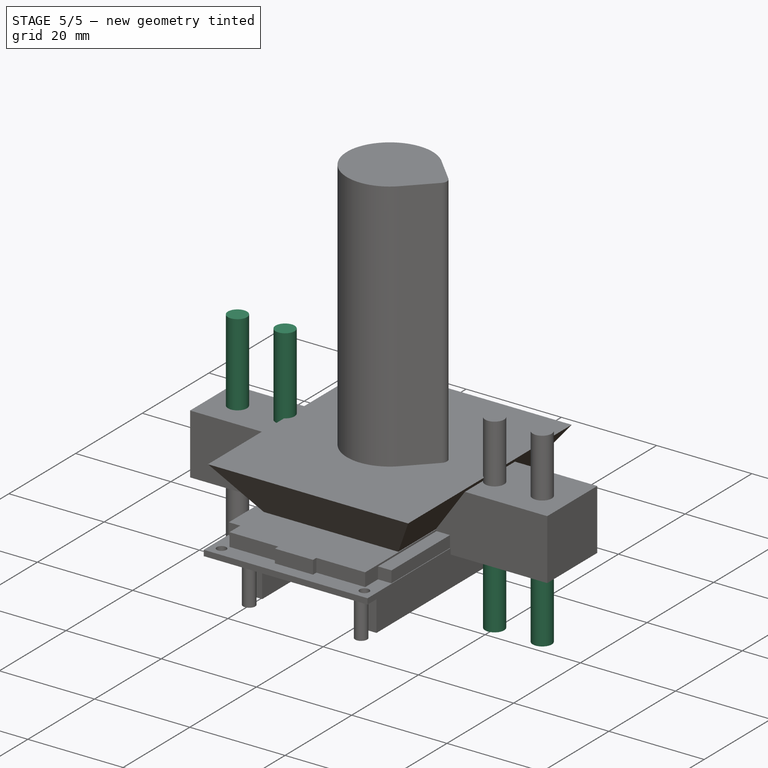
[diagram: stage 5 of 5 — iso view after this stage's code; geometry added in this stage tinted green]
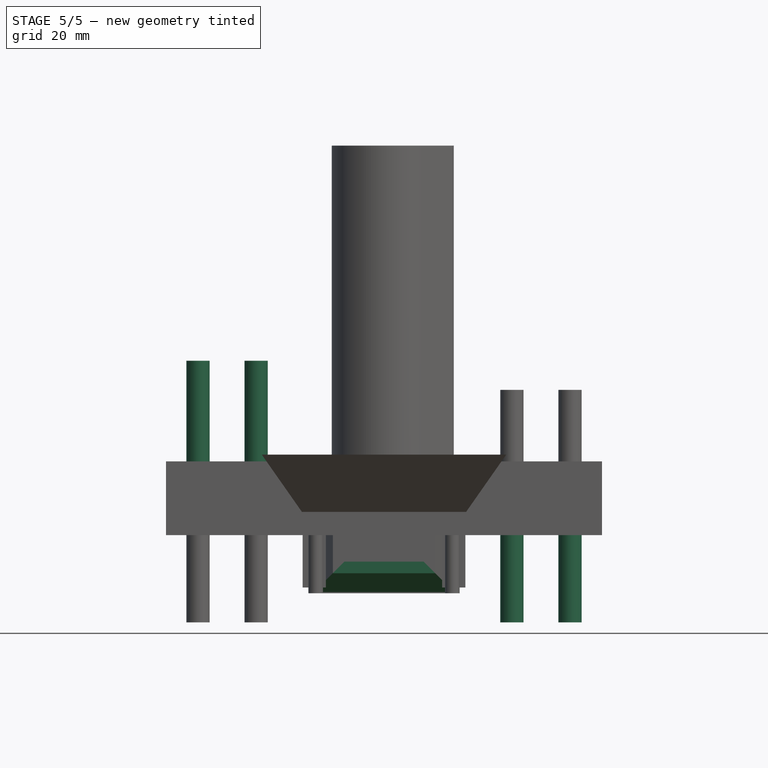
[diagram: stage 5 of 5 — front view after this stage's code; geometry added in this stage tinted green]
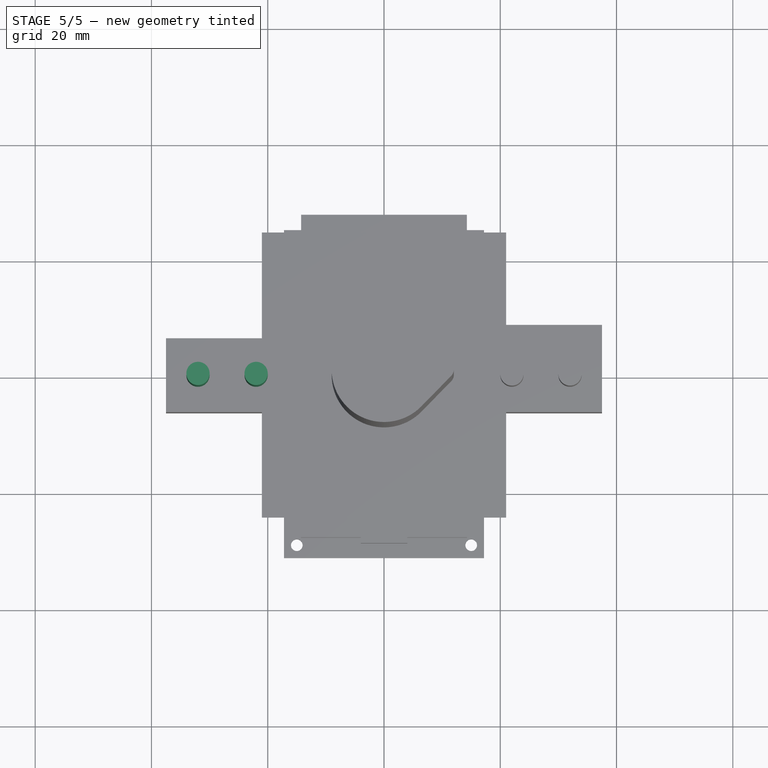
[diagram: stage 5 of 5 — top view after this stage's code; geometry added in this stage tinted green]
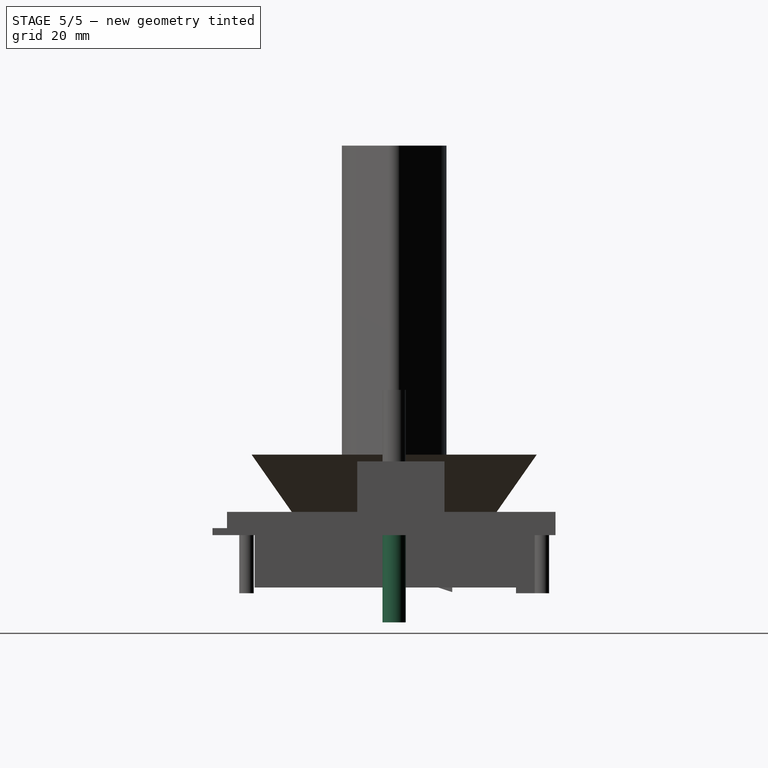
[diagram: stage 5 of 5 — right view after this stage's code; geometry added in this stage tinted green]
FEATURE [Sketcher::SketchObject] Sketch
  ArcFitTolerance = 1e-06
  AttachmentSupport = -> [XY_Plane]
  FullyConstrained = true
  MakeInternals = false
  MapMode = 5
  sketch-geometry (9):
    g0: Circle CenterX=-32 CenterY=0 CenterZ=0 NormalX=0 NormalY=0 NormalZ=1 AngleXU=0 Radius=2
    g1: Circle CenterX=-22 CenterY=0 CenterZ=0 NormalX=0 NormalY=0 NormalZ=1 AngleXU=0 Radius=2
    g2: Circle CenterX=22 CenterY=0 CenterZ=0 NormalX=0 NormalY=0 NormalZ=1 AngleXU=0 Radius=2
    g3: Circle CenterX=32 CenterY=0 CenterZ=0 NormalX=0 NormalY=0 NormalZ=1 AngleXU=0 Radius=2
    g4: LineSegment StartX=-37.5 StartY=6.35 StartZ=0 EndX=-37.5 EndY=-6.35 EndZ=0
    g5: LineSegment StartX=-37.5 StartY=-6.35 StartZ=0 EndX=37.5 EndY=-6.35 EndZ=0
    g6: LineSegment StartX=37.5 StartY=-6.35 StartZ=0 EndX=37.5 EndY=6.35 EndZ=0
    g7: LineSegment StartX=37.5 StartY=6.35 StartZ=0 EndX=-37.5 EndY=6.35 EndZ=0
    g8: GeomPoint X=0 Y=0 Z=0
  constraints (23):
    c: PointOnObject(g0,g-1)
    c: PointOnObject(g1,g-1)
    c: PointOnObject(g3,g-1)
    c: Equal(g3,g2)
    c: Equal(g2,g1)
    c: Equal(g1,g0)
    c: Coincident(g4,g5)
    c: Coincident(g5,g6)
    c: Coincident(g6,g7)
    c: Coincident(g7,g4)
    c: Vertical(g4)
    c: Vertical(g6)
    c: Horizontal(g5)
    c: Horizontal(g7)
    c: Symmetric(g6,g4,g8)
    c: Coincident(g8,g-1)
    c: DistanceX(g7,g7) = 75
    c: DistanceY(g6,g6) = 12.7
    c: DistanceX(g0,g1) = 10
    c: DistanceX(g2,g3) = 10
    c: Diameter(g1) = 4
    c: DistanceX(g1,g2) = 44
    c: Symmetric(g1,g2,g-2)
FEATURE [Image::ImagePlane] loadcell  label="loadcell_img"
  Placement = pos=(4.5,7.2,0) rot=(0,0,1;0rad)
  XSize = 103.317
  YSize = 34.6719
FEATURE [PartDesign::Pad] Pad
  Direction = (0,0,1)
  Length = 12.7
  Length2 = 10
  Profile = -> Sketch [Edge6,Edge7,Edge8,Edge5]
  ReferenceAxis = -> Sketch [N_Axis]
  Refine = true
  Suppressed = false
  Type = 0
FEATURE [PartDesign::Pad] Pad001
  BaseFeature = -> Pad
  Direction = (0,0,1)
  Length = 30
  Length2 = 10
  Profile = -> Sketch [Edge2,Edge1]
  ReferenceAxis = -> Sketch [N_Axis]
  Refine = true
  Suppressed = false
  Type = 0
FEATURE [PartDesign::Pad] Pad002
  BaseFeature = -> Pad001
  Direction = (0,0,1)
  Length = 15
  Length2 = 10
  Profile = -> Sketch [Edge3,Edge4]
  ReferenceAxis = -> Sketch [N_Axis]
  Refine = true
  Reversed = true
  Suppressed = false
  Type = 0
FEATURE [PartDesign::Pocket] Pocket
  BaseFeature = -> Pad015
  Direction = (-1,0,0)
  Length = 5
  Length2 = 5
  Midplane = true
  Profile = -> Sketch007
  ReferenceAxis = -> Sketch007 [N_Axis]
  Refine = true
  Suppressed = false
  Type = 1
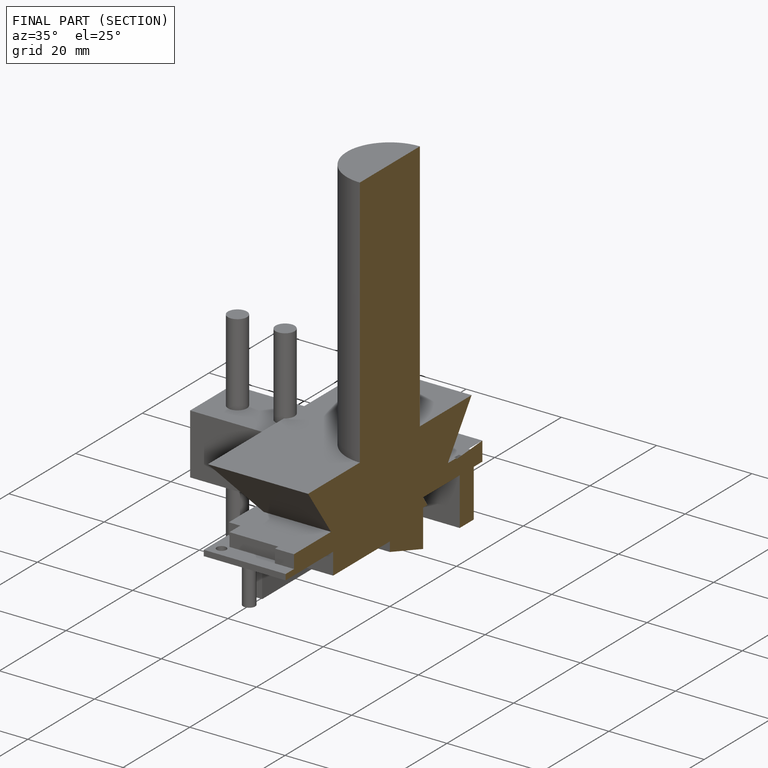
[diagram: finished part — half-section view (interior)]
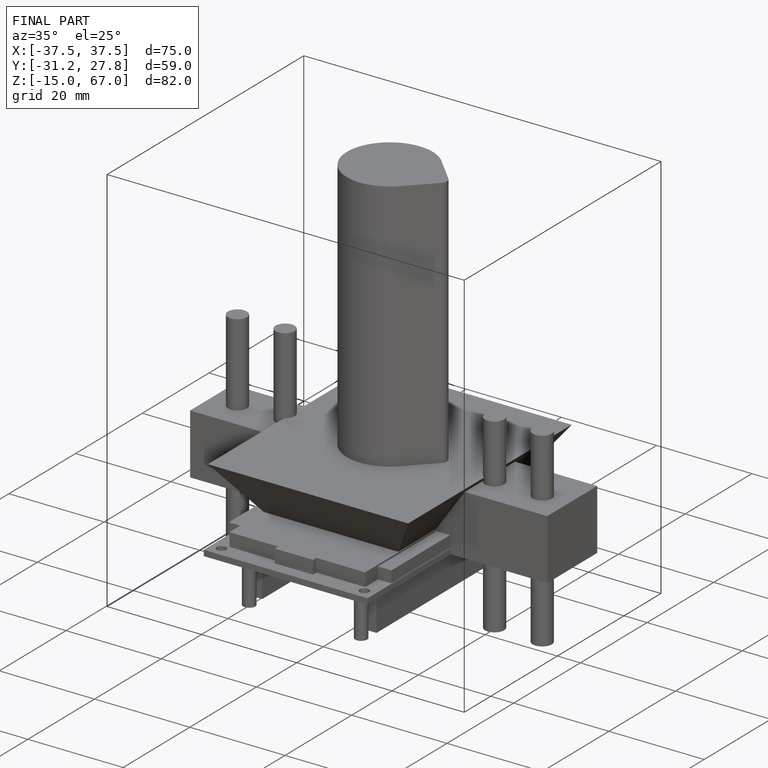
[diagram: finished part — iso view with bounding-box wireframe]
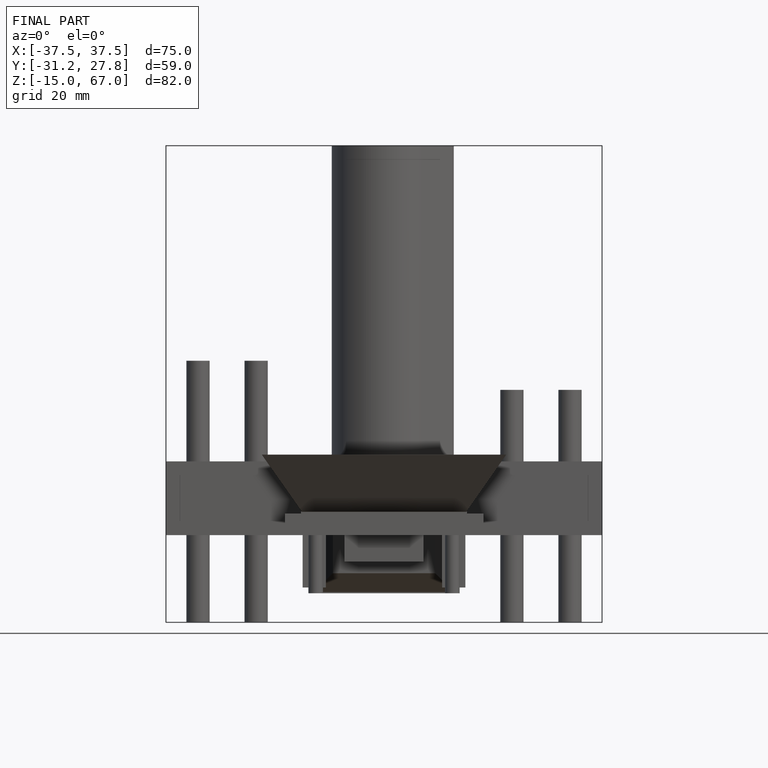
[diagram: finished part — front view with bounding-box wireframe]
